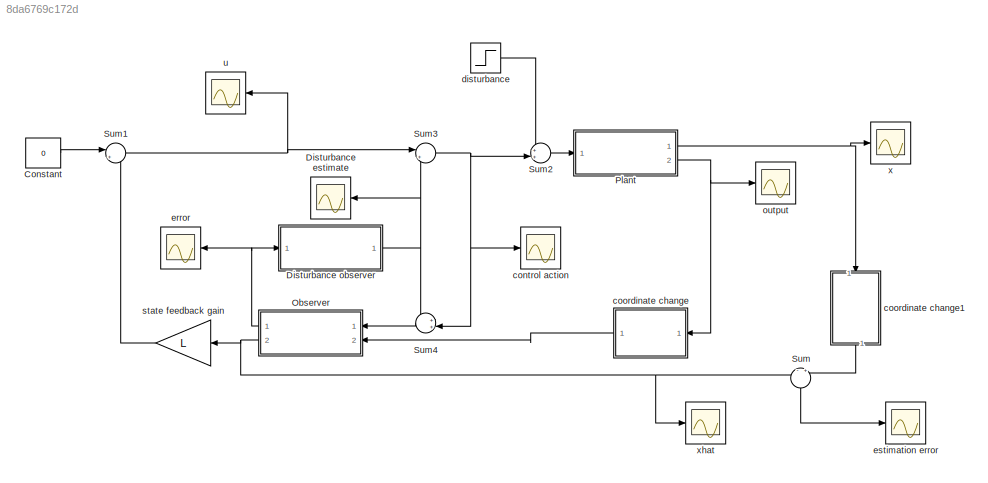
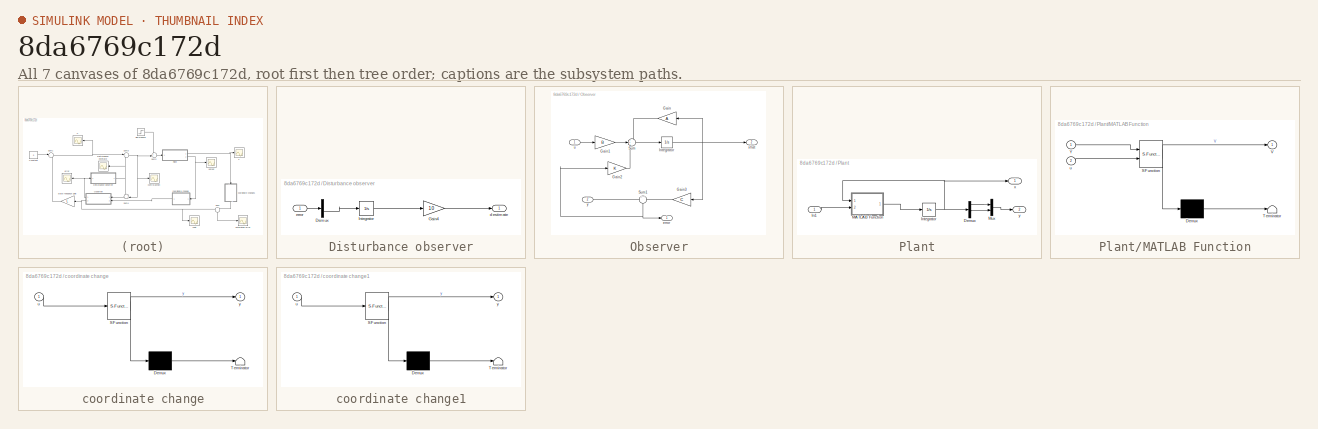
[diagram: thumbnail index - all 7 canvases of the model, root first then tree order]
MODEL slx_8da6769c172d
KIND model
CONFIG AbsTol = auto
CONFIG EnableMultiTasking = off
CONFIG FixedStep = auto
CONFIG MaxStep = auto
CONFIG MinStep = auto
CONFIG RelTol = 1e-3
CONFIG SampleTimeConstraint = Unconstrained
CONFIG Solver = ode23tb
CONFIG SolverName = ode23tb
CONFIG StartTime = 0.0
CONFIG StopTime = 10
BLOCK [Constant] Constant
  Value = 0
BLOCK [Scope] Disturbance estimate
  NumInputPorts = 1
  Ports = [1]
  ScopeSpecificationString = Simulink.scopes.TimeScopeBlockCfg('CurrentConfiguration', extmgr.ConfigurationSet(extmgr.Configuration('Core','General UI',true),extmgr.Configuration('Core','Source UI',true),extmgr.Configuration('Sources','WiredSimulink',true,'DataLoggingVariableName','ScopeData1'),extmgr.Configuration('Visuals','Time Domain',true,'SerializedDisplays',{struct('MinYLimReal','-0.12467','MaxYLimReal','0.11828','YLab...<+1477ch>
BLOCK [SubSystem] Disturbance observer
  Commented = on
  Ports = [1, 1]
  RequestExecContextInheritance = off
  Variant = off
BLOCK [Demux] Disturbance observer/Demux
  DisplayOption = bar
  Outputs = 2
  Ports = [1, 2]
BLOCK [Gain] Disturbance observer/Gain4
  Gain = 10
  Multiplication = Matrix(K*u)
  OutDataTypeStr = Inherit: Inherit via internal rule
  ParamDataTypeStr = Inherit: Inherit via internal rule
  SaturateOnIntegerOverflow = off
BLOCK [Integrator] Disturbance observer/Integrator
  Ports = [1, 1]
BLOCK [Outport] Disturbance observer/d estimate
  IconDisplay = Port number
BLOCK [Inport] Disturbance observer/error
  IconDisplay = Port number
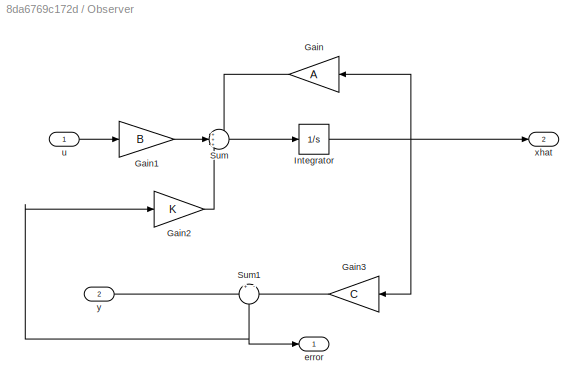
BLOCK [SubSystem] Observer
  Ports = [2, 2]
  RequestExecContextInheritance = off
  Variant = off
BLOCK [Gain] Observer/Gain
  Gain = A
  Multiplication = Matrix(K*u)
  OutDataTypeStr = Inherit: Inherit via internal rule
  ParamDataTypeStr = Inherit: Inherit via internal rule
  SaturateOnIntegerOverflow = off
BLOCK [Gain] Observer/Gain1
  Gain = B
  Multiplication = Matrix(K*u)
  OutDataTypeStr = Inherit: Inherit via internal rule
  ParamDataTypeStr = Inherit: Inherit via internal rule
  SaturateOnIntegerOverflow = off
BLOCK [Gain] Observer/Gain2
  Gain = K
  Multiplication = Matrix(K*u)
  OutDataTypeStr = Inherit: Inherit via internal rule
  ParamDataTypeStr = Inherit: Inherit via internal rule
  SaturateOnIntegerOverflow = off
BLOCK [Gain] Observer/Gain3
  Gain = C
  Multiplication = Matrix(K*u)
  OutDataTypeStr = Inherit: Inherit via internal rule
  ParamDataTypeStr = Inherit: Inherit via internal rule
  SaturateOnIntegerOverflow = off
BLOCK [Integrator] Observer/Integrator
  InitialCondition = [0 0 0 0]
  Ports = [1, 1]
BLOCK [Sum] Observer/Sum
  IconShape = round
  InputSameDT = off
  Inputs = +++
  OutDataTypeStr = Inherit: Inherit via internal rule
  Ports = [3, 1]
  SaturateOnIntegerOverflow = off
BLOCK [Sum] Observer/Sum1
  IconShape = round
  InputSameDT = off
  Inputs = +|-
  OutDataTypeStr = Inherit: Inherit via internal rule
  Ports = [2, 1]
  SaturateOnIntegerOverflow = off
BLOCK [Outport] Observer/error
  IconDisplay = Port number
BLOCK [Inport] Observer/u
  IconDisplay = Port number
BLOCK [Outport] Observer/xhat
  IconDisplay = Port number
  Port = 2
BLOCK [Inport] Observer/y
  IconDisplay = Port number
  Port = 2
BLOCK [SubSystem] Plant
  Ports = [1, 2]
  RequestExecContextInheritance = off
  Variant = off
BLOCK [Demux] Plant/Demux
  DisplayOption = bar
  Ports = [1, 4]
BLOCK [Inport] Plant/In1
  IconDisplay = Port number
BLOCK [Integrator] Plant/Integrator
  InitialCondition = x0
  Ports = [1, 1]
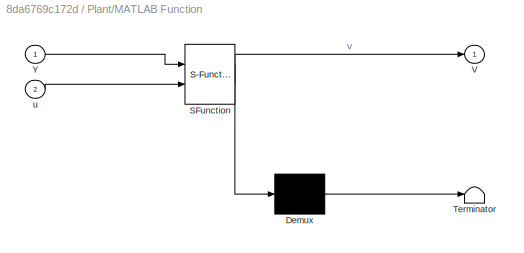
BLOCK [SubSystem] Plant/MATLAB Function
  ErrorFcn = Stateflow.Translate.translate
  PermitHierarchicalResolution = ExplicitOnly
  Ports = [2, 1]
  RequestExecContextInheritance = off
  SFBlockType = MATLAB Function
  TreatAsAtomicUnit = on
  Variant = off
BLOCK [Demux] Plant/MATLAB Function/ Demux 
  Outputs = 1
  Ports = [1, 1]
BLOCK [S-Function] Plant/MATLAB Function/ SFunction 
  EnableBusSupport = on
  FunctionName = sf_sfun
  PortCounts = [2 2]
  Ports = [2, 2]
  SFcnIsStateOwnerBlock = off
  SFunctionDeploymentMode = off
  Tag = Stateflow S-Function pencontroller1 2
BLOCK [Terminator] Plant/MATLAB Function/ Terminator 
BLOCK [Outport] Plant/MATLAB Function/V
  IconDisplay = Port number
BLOCK [Inport] Plant/MATLAB Function/Y
  IconDisplay = Port number
BLOCK [Inport] Plant/MATLAB Function/u
  IconDisplay = Port number
  Port = 2
BLOCK [Mux] Plant/Mux
  DisplayOption = bar
  Inputs = 2
  Ports = [2, 1]
BLOCK [Outport] Plant/x
  IconDisplay = Port number
BLOCK [Outport] Plant/y
  IconDisplay = Port number
  Port = 2
BLOCK [Sum] Sum
  IconShape = round
  InputSameDT = off
  Inputs = -|+
  OutDataTypeStr = Inherit: Inherit via internal rule
  Ports = [2, 1]
  SaturateOnIntegerOverflow = off
BLOCK [Sum] Sum1
  IconShape = round
  InputSameDT = off
  Inputs = |+-
  OutDataTypeStr = Inherit: Inherit via internal rule
  Ports = [2, 1]
  SaturateOnIntegerOverflow = off
BLOCK [Sum] Sum2
  IconShape = round
  InputSameDT = off
  Inputs = ++|
  OutDataTypeStr = Inherit: Inherit via internal rule
  Ports = [2, 1]
  SaturateOnIntegerOverflow = off
BLOCK [Sum] Sum3
  IconShape = round
  InputSameDT = off
  Inputs = |+-
  OutDataTypeStr = Inherit: Inherit via internal rule
  Ports = [2, 1]
  SaturateOnIntegerOverflow = off
BLOCK [Sum] Sum4
  IconShape = round
  InputSameDT = off
  Inputs = ++|
  OutDataTypeStr = Inherit: Inherit via internal rule
  Ports = [2, 1]
  SaturateOnIntegerOverflow = off
BLOCK [Scope] control action
  NumInputPorts = 1
  Ports = [1]
  ScopeSpecificationString = Simulink.scopes.TimeScopeBlockCfg('CurrentConfiguration', extmgr.ConfigurationSet(extmgr.Configuration('Core','General UI',true),extmgr.Configuration('Core','Source UI',true),extmgr.Configuration('Sources','WiredSimulink',true,'DataLoggingVariableName','ScopeData2'),extmgr.Configuration('Visuals','Time Domain',true,'SerializedDisplays',{struct('MinYLimReal','-1.12956','MaxYLimReal','1.89218','YLab...<+1463ch>
BLOCK [SubSystem] coordinate change
  ErrorFcn = Stateflow.Translate.translate
  PermitHierarchicalResolution = ExplicitOnly
  Ports = [1, 1]
  RequestExecContextInheritance = off
  SFBlockType = MATLAB Function
  TreatAsAtomicUnit = on
  Variant = off
BLOCK [Demux] coordinate change/ Demux 
  Outputs = 1
  Ports = [1, 1]
BLOCK [S-Function] coordinate change/ SFunction 
  EnableBusSupport = on
  FunctionName = sf_sfun
  PortCounts = [1 2]
  Ports = [1, 2]
  SFcnIsStateOwnerBlock = off
  SFunctionDeploymentMode = off
  Tag = Stateflow S-Function pencontroller1 1
BLOCK [Terminator] coordinate change/ Terminator 
BLOCK [Inport] coordinate change/u
  IconDisplay = Port number
BLOCK [Outport] coordinate change/y
  IconDisplay = Port number
BLOCK [SubSystem] coordinate change1
  ErrorFcn = Stateflow.Translate.translate
  PermitHierarchicalResolution = ExplicitOnly
  Ports = [1, 1]
  RequestExecContextInheritance = off
  SFBlockType = MATLAB Function
  TreatAsAtomicUnit = on
  Variant = off
BLOCK [Demux] coordinate change1/ Demux 
  Outputs = 1
  Ports = [1, 1]
BLOCK [S-Function] coordinate change1/ SFunction 
  EnableBusSupport = on
  FunctionName = sf_sfun
  PortCounts = [1 2]
  Ports = [1, 2]
  SFcnIsStateOwnerBlock = off
  SFunctionDeploymentMode = off
  Tag = Stateflow S-Function pencontroller1 3
BLOCK [Terminator] coordinate change1/ Terminator 
BLOCK [Inport] coordinate change1/u
  IconDisplay = Port number
BLOCK [Outport] coordinate change1/y
  IconDisplay = Port number
BLOCK [Step] disturbance
  After = 0
  SampleTime = 0
  Time = 5
BLOCK [Scope] error
  NumInputPorts = 1
  Ports = [1]
  ScopeSpecificationString = Simulink.scopes.TimeScopeBlockCfg('CurrentConfiguration', extmgr.ConfigurationSet(extmgr.Configuration('Core','General UI',true),extmgr.Configuration('Core','Source UI',true),extmgr.Configuration('Sources','WiredSimulink',true,'DataLoggingVariableName','ScopeData6'),extmgr.Configuration('Visuals','Time Domain',true,'SerializedDisplays',{struct('MinYLimReal','-87.75254','MaxYLimReal','789.77279','Y...<+1476ch>
BLOCK [Scope] estimation error
  NumInputPorts = 1
  Ports = [1]
  ScopeSpecificationString = Simulink.scopes.TimeScopeBlockCfg('CurrentConfiguration', extmgr.ConfigurationSet(extmgr.Configuration('Core','General UI',true),extmgr.Configuration('Core','Source UI',true),extmgr.Configuration('Sources','WiredSimulink',true,'DataLoggingVariableName','ScopeData3'),extmgr.Configuration('Visuals','Time Domain',true,'SerializedDisplays',{struct('MinYLimReal','-0.27342','MaxYLimReal','0.15798','YLab...<+1486ch>
BLOCK [Scope] output
  NumInputPorts = 1
  Ports = [1]
  ScopeSpecificationString = Simulink.scopes.TimeScopeBlockCfg('CurrentConfiguration', extmgr.ConfigurationSet(extmgr.Configuration('Core','General UI',true),extmgr.Configuration('Core','Source UI',true),extmgr.Configuration('Sources','WiredSimulink',true,'DataLoggingVariableName','ScopeData4'),extmgr.Configuration('Visuals','Time Domain',true,'SerializedDisplays',{struct('MinYLimReal','-3130934627.86339','MaxYLimReal','34788...<+1547ch>
BLOCK [Gain] state feedback gain
  Gain = L
  Multiplication = Matrix(K*u)
  OutDataTypeStr = Inherit: Inherit via internal rule
  ParamDataTypeStr = Inherit: Inherit via internal rule
  SaturateOnIntegerOverflow = off
BLOCK [Scope] u
  NumInputPorts = 1
  Ports = [1]
  ScopeSpecificationString = Simulink.scopes.TimeScopeBlockCfg('CurrentConfiguration', extmgr.ConfigurationSet(extmgr.Configuration('Core','General UI',true),extmgr.Configuration('Core','Source UI',true),extmgr.Configuration('Sources','WiredSimulink',true,'DataLoggingVariableName','ScopeData1'),extmgr.Configuration('Visuals','Time Domain',true,'SerializedDisplays',{struct('MinYLimReal','-0.34389','MaxYLimReal','0.62688','YLab...<+1461ch>
BLOCK [Scope] x
  NumInputPorts = 1
  Ports = [1]
  ScopeSpecificationString = Simulink.scopes.TimeScopeBlockCfg('CurrentConfiguration', extmgr.ConfigurationSet(extmgr.Configuration('Core','General UI',true),extmgr.Configuration('Core','Source UI',true),extmgr.Configuration('Sources','WiredSimulink',true),extmgr.Configuration('Visuals','Time Domain',true,'SerializedDisplays',{struct('MinYLimReal','-17.41491','MaxYLimReal','14.21982','YLabelReal','','MinYLimMag','0.00000','Ma...<+1469ch>
BLOCK [Scope] xhat
  NumInputPorts = 1
  Ports = [1]
  ScopeSpecificationString = Simulink.scopes.TimeScopeBlockCfg('CurrentConfiguration', extmgr.ConfigurationSet(extmgr.Configuration('Core','General UI',true),extmgr.Configuration('Core','Source UI',true),extmgr.Configuration('Sources','WiredSimulink',true,'DataLoggingVariableName','ScopeData5'),extmgr.Configuration('Visuals','Time Domain',true,'SerializedDisplays',{struct('MinYLimReal','-10711441569.36352','MaxYLimReal','8195...<+1592ch>
LINE Constant:1 -> Sum1:1
LINE Disturbance observer/Demux:2 -> Disturbance observer/Integrator:1
LINE Disturbance observer/Gain4:1 -> Disturbance observer/d estimate:1
LINE Disturbance observer/Integrator:1 -> Disturbance observer/Gain4:1
LINE Disturbance observer/error:1 -> Disturbance observer/Demux:1
NET Disturbance observer:1 -> Disturbance estimate:1, Sum3:2, Sum4:1
LINE Observer/Gain1:1 -> Observer/Sum:2
LINE Observer/Gain2:1 -> Observer/Sum:3
LINE Observer/Gain3:1 -> Observer/Sum1:2
LINE Observer/Gain:1 -> Observer/Sum:1
NET Observer/Integrator:1 -> Observer/Gain3:1, Observer/Gain:1, Observer/xhat:1
NET Observer/Sum1:1 -> Observer/Gain2:1, Observer/error:1
LINE Observer/Sum:1 -> Observer/Integrator:1
LINE Observer/u:1 -> Observer/Gain1:1
LINE Observer/y:1 -> Observer/Sum1:1
NET Observer:1 -> Disturbance observer:1, error:1
NET Observer:2 -> Sum:1, state feedback gain:1, xhat:1
LINE Plant/Demux:1 -> Plant/Mux:1
LINE Plant/Demux:3 -> Plant/Mux:2
LINE Plant/In1:1 -> Plant/MATLAB Function:2
NET Plant/Integrator:1 -> Plant/Demux:1, Plant/MATLAB Function:1, Plant/x:1
LINE Plant/MATLAB Function:1 -> Plant/Integrator:1
LINE Plant/Mux:1 -> Plant/y:1
NET Plant:1 -> coordinate change1:1, x:1
NET Plant:2 -> coordinate change:1, output:1
NET Sum1:1 -> Sum3:1, u:1
LINE Sum2:1 -> Plant:1
NET Sum3:1 -> Sum2:2, Sum4:2, control action:1
LINE Sum4:1 -> Observer:1
LINE Sum:1 -> estimation error:1
LINE coordinate change1:1 -> Sum:2
LINE coordinate change:1 -> Observer:2
LINE disturbance:1 -> Sum2:1
LINE state feedback gain:1 -> Sum1:2
note: NET lines group one-source signal fan-out (src -> all destinations, sorted); 1:1 wires keep LINE
CHART coordinate change states=1 transitions=1
  STATE_LABEL 'eML_blk_kernel()'
  STATE_LABEL 'SCRIPT:\nfunction y = fcn(u)\n\ny = u + 0.5*pi;\n'
CHART Plant/MATLAB Function states=1 transitions=1
  STATE_LABEL 'eML_blk_kernel()'
  STATE_LABEL 'SCRIPT:\nfunction V = M(Y,u)\n%M\n%    V = M(Y,U)\n\n%    This function was generated by the Symbolic Math Toolbox version 8.0.\n%    09-May-2018 10:56:52\n\nt3 = Y(1);\nt4 = Y(3);\nt5 = t3-t4;\nt2 = cos(t5);\nt6 = t2.^2;\nt7 = t6.*7.29e-8;\nt8 = t7-8.854411999999999e-6;\nt9 = 1.0./t8;\nt10 = Y(2);\nt11 = Y(4);\nt12 = cos(t4);\nt13 = cos(t3);\nt14 = sin(t5);\nt15 = t10.^2;\nt16 = t3.*2.0;\nt17 = t4.*-2.0+t16;\nt18 = sin(...<+371ch>'
CHART coordinate change1 states=1 transitions=1
  STATE_LABEL 'eML_blk_kernel()'
  STATE_LABEL 'SCRIPT:\nfunction y = fcn(u)\ny = [0 0 0 0];\ny(1) = u(1) + 0.5*pi;\ny(3) = u(3) + 0.5*pi;\ny(2) = u(2);\ny(4) = u(4);'
